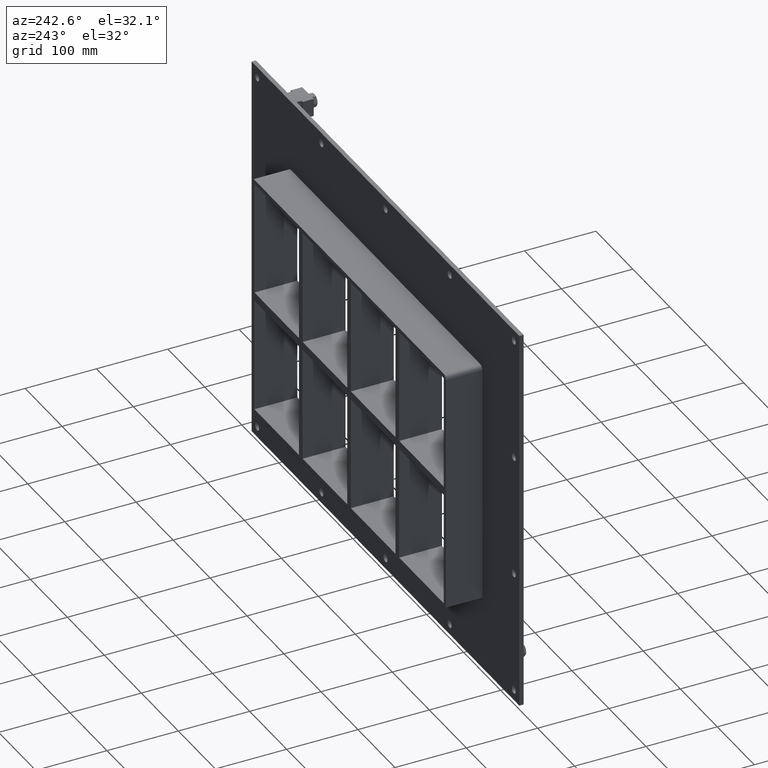
[diagram: clean part render]
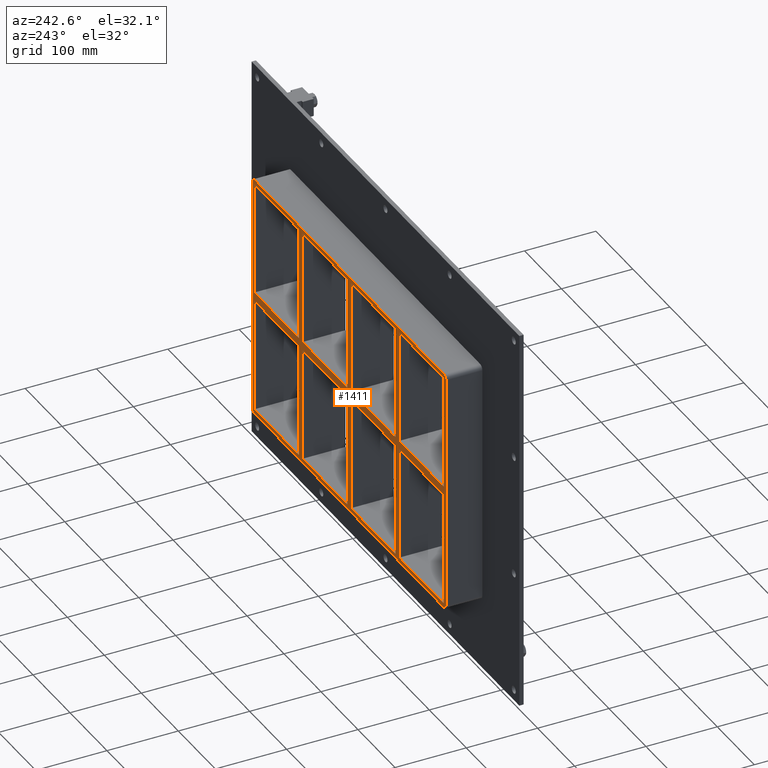
[diagram: same view with one face highlighted and labeled with its STEP entity id]
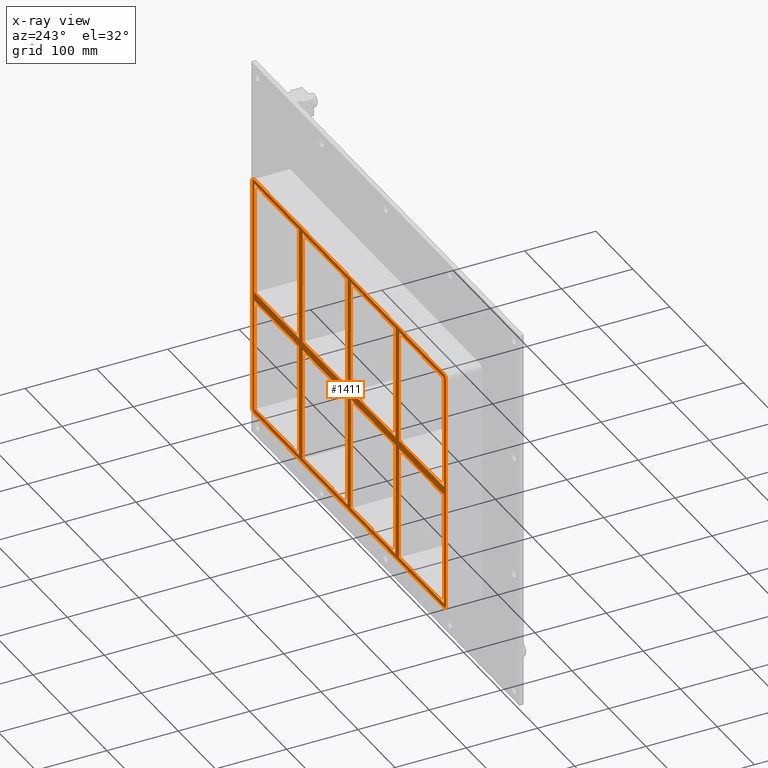
[diagram: x-ray of the same camera — body ghosted, the highlighted face saturated]
A machine part, auxiliary view. The second image highlights one B-rep face of the part: STEP entity #1411.
The next image is the same camera in x-ray: the body ghosted, the highlighted face saturated — about 0% of this face is hidden behind the body in this view.
In plain terms, the highlighted planar face has unit normal (0, 1, 0).
Its self-contained STEP definition (entity closure, byte-faithful):
#467=CARTESIAN_POINT('',(125.50000000000095,57.0,5.999999999999091));
#468=VERTEX_POINT('',#467);
#483=CARTESIAN_POINT('',(125.50000000000095,57.0,165.5));
#484=VERTEX_POINT('',#483);
#491=CARTESIAN_POINT('',(125.50000000000095,57.0,5.999999999999091));
#492=DIRECTION('',(0.0,0.0,1.0));
#493=VECTOR('',#492,159.50000000000091);
#494=LINE('',#491,#493);
#495=EDGE_CURVE('',#468,#484,#494,.T.);
#505=CARTESIAN_POINT('',(125.50000000000097,57.0,-6.000000000010779));
#506=VERTEX_POINT('',#505);
#515=CARTESIAN_POINT('',(125.50000000000097,57.0,-165.5));
#516=VERTEX_POINT('',#515);
#517=CARTESIAN_POINT('',(125.50000000000097,57.0,-165.5));
#518=DIRECTION('',(0.0,0.0,1.0));
#519=VECTOR('',#518,159.49999999998923);
#520=LINE('',#517,#519);
#521=EDGE_CURVE('',#516,#506,#520,.T.);
#545=CARTESIAN_POINT('',(135.50000000000728,57.0,5.999999999999091));
#546=VERTEX_POINT('',#545);
#555=CARTESIAN_POINT('',(135.50000000000728,57.0,165.5));
#556=VERTEX_POINT('',#555);
#557=CARTESIAN_POINT('',(135.50000000000728,57.0,165.5));
#558=DIRECTION('',(0.0,0.0,-1.0));
#559=VECTOR('',#558,159.50000000000091);
#560=LINE('',#557,#559);
#561=EDGE_CURVE('',#556,#546,#560,.T.);
#587=CARTESIAN_POINT('',(135.50000000000728,57.0,-6.000000000010779));
#588=VERTEX_POINT('',#587);
#603=CARTESIAN_POINT('',(135.50000000000728,57.0,-165.49999999998175));
#604=VERTEX_POINT('',#603);
#611=CARTESIAN_POINT('',(135.50000000000728,57.0,-6.0000000000108));
#612=DIRECTION('',(0.0,0.0,-1.0));
#613=VECTOR('',#612,159.49999999997095);
#614=LINE('',#611,#613);
#615=EDGE_CURVE('',#588,#604,#614,.T.);
#627=CARTESIAN_POINT('',(-4.999999999999051,57.0,5.999999999999091));
#628=VERTEX_POINT('',#627);
#643=CARTESIAN_POINT('',(-4.999999999999059,57.0,165.5));
#644=VERTEX_POINT('',#643);
#651=CARTESIAN_POINT('',(-4.99999999999905,57.0,5.999999999999091));
#652=DIRECTION('',(0.0,0.0,1.0));
#653=VECTOR('',#652,159.50000000000091);
#654=LINE('',#651,#653);
#655=EDGE_CURVE('',#628,#644,#654,.T.);
#665=CARTESIAN_POINT('',(-4.999999999999049,57.0,-6.000000000010672));
#666=VERTEX_POINT('',#665);
#675=CARTESIAN_POINT('',(-4.999999999999041,57.0,-165.5));
#676=VERTEX_POINT('',#675);
#677=CARTESIAN_POINT('',(-4.999999999999041,57.0,-165.5));
#678=DIRECTION('',(0.0,0.0,1.0));
#679=VECTOR('',#678,159.49999999998934);
#680=LINE('',#677,#679);
#681=EDGE_CURVE('',#676,#666,#680,.T.);
#705=CARTESIAN_POINT('',(5.000000000007283,57.0,5.999999999999091));
#706=VERTEX_POINT('',#705);
#715=CARTESIAN_POINT('',(5.000000000007283,57.0,165.5));
#716=VERTEX_POINT('',#715);
#717=CARTESIAN_POINT('',(5.000000000007283,57.0,165.5));
#718=DIRECTION('',(0.0,0.0,-1.0));
#719=VECTOR('',#718,159.50000000000091);
#720=LINE('',#717,#719);
#721=EDGE_CURVE('',#716,#706,#720,.T.);
#747=CARTESIAN_POINT('',(5.000000000007283,57.0,-6.000000000010672));
#748=VERTEX_POINT('',#747);
#763=CARTESIAN_POINT('',(5.000000000007283,57.0,-165.49999999998175));
#764=VERTEX_POINT('',#763);
#771=CARTESIAN_POINT('',(5.000000000007283,57.0,-6.000000000010687));
#772=DIRECTION('',(0.0,0.0,-1.0));
#773=VECTOR('',#772,159.49999999997107);
#774=LINE('',#771,#773);
#775=EDGE_CURVE('',#748,#764,#774,.T.);
#786=CARTESIAN_POINT('',(-125.49999999999272,57.0,-165.49999999998175));
#787=VERTEX_POINT('',#786);
#788=CARTESIAN_POINT('',(-125.49999999999272,57.0,-165.5));
#789=DIRECTION('',(1.0,0.0,0.0));
#790=VECTOR('',#789,120.49999999999369);
#791=LINE('',#788,#790);
#792=EDGE_CURVE('',#787,#676,#791,.T.);
#817=CARTESIAN_POINT('',(5.000000000007276,57.0,-165.5));
#818=DIRECTION('',(1.0,0.0,0.0));
#819=VECTOR('',#818,120.49999999999369);
#820=LINE('',#817,#819);
#821=EDGE_CURVE('',#764,#516,#820,.T.);
#847=CARTESIAN_POINT('',(256.0,57.0,-165.5));
#848=VERTEX_POINT('',#847);
#855=CARTESIAN_POINT('',(135.50000000000728,57.0,-165.5));
#856=DIRECTION('',(1.0,0.0,0.0));
#857=VECTOR('',#856,120.49999999999272);
#858=LINE('',#855,#857);
#859=EDGE_CURVE('',#604,#848,#858,.T.);
#1127=CARTESIAN_POINT('',(256.00000000000364,57.0,-6.000000000010886));
#1128=VERTEX_POINT('',#1127);
#1129=CARTESIAN_POINT('',(256.00000000000364,57.0,-6.000000000010886));
#1130=DIRECTION('',(-1.0,0.0,0.0));
#1131=VECTOR('',#1130,120.49999999999636);
#1132=LINE('',#1129,#1131);
#1133=EDGE_CURVE('',#1128,#588,#1132,.T.);
#1152=CARTESIAN_POINT('',(-125.49999999999272,57.0,-6.000000000010568));
#1153=VERTEX_POINT('',#1152);
#1160=CARTESIAN_POINT('',(-4.999999999999034,57.0,-6.000000000010668));
#1161=DIRECTION('',(-1.0,0.0,0.0));
#1162=VECTOR('',#1161,120.49999999999369);
#1163=LINE('',#1160,#1162);
#1164=EDGE_CURVE('',#666,#1153,#1163,.T.);
#1169=CARTESIAN_POINT('',(0.0,57.0,0.0));
#1170=DIRECTION('',(0.0,1.0,0.0));
#1171=DIRECTION('',(0.0,0.0,1.0));
#1172=AXIS2_PLACEMENT_3D('',#1169,#1170,#1171);
#1173=PLANE('',#1172);
#1174=CARTESIAN_POINT('',(-262.0,57.0,-165.5));
#1175=VERTEX_POINT('',#1174);
#1176=CARTESIAN_POINT('',(-256.0,57.0,-171.50000000000003));
#1177=VERTEX_POINT('',#1176);
#1178=CARTESIAN_POINT('',(-256.0,57.0,-165.5));
#1179=DIRECTION('',(0.0,-1.0,0.0));
#1180=DIRECTION('',(-0.707106781186548,0.0,-0.707106781186548));
#1181=AXIS2_PLACEMENT_3D('',#1178,#1179,#1180);
#1182=CIRCLE('',#1181,6.000000000000002);
#1183=EDGE_CURVE('',#1175,#1177,#1182,.T.);
#1184=ORIENTED_EDGE('',*,*,#1183,.F.);
#1185=CARTESIAN_POINT('',(-262.0,57.0,165.5));
#1186=VERTEX_POINT('',#1185);
#1187=CARTESIAN_POINT('',(-262.0,57.0,-165.5));
#1188=DIRECTION('',(0.0,0.0,1.0));
#1189=VECTOR('',#1188,331.0);
#1190=LINE('',#1187,#1189);
#1191=EDGE_CURVE('',#1175,#1186,#1190,.T.);
#1192=ORIENTED_EDGE('',*,*,#1191,.T.);
#1193=CARTESIAN_POINT('',(-256.0,57.0,171.50000000000003));
#1194=VERTEX_POINT('',#1193);
#1195=CARTESIAN_POINT('',(-256.0,57.0,165.5));
#1196=DIRECTION('',(0.0,-1.0,0.0));
#1197=DIRECTION('',(-0.707106781186548,0.0,0.707106781186548));
#1198=AXIS2_PLACEMENT_3D('',#1195,#1196,#1197);
#1199=CIRCLE('',#1198,6.000000000000002);
#1200=EDGE_CURVE('',#1194,#1186,#1199,.T.);
#1201=ORIENTED_EDGE('',*,*,#1200,.F.);
#1202=CARTESIAN_POINT('',(256.0,57.0,171.50000000000003));
#1203=VERTEX_POINT('',#1202);
#1204=CARTESIAN_POINT('',(-256.0,57.0,171.50000000000003));
#1205=DIRECTION('',(1.0,0.0,0.0));
#1206=VECTOR('',#1205,512.0);
#1207=LINE('',#1204,#1206);
#1208=EDGE_CURVE('',#1194,#1203,#1207,.T.);
#1209=ORIENTED_EDGE('',*,*,#1208,.T.);
#1210=CARTESIAN_POINT('',(262.0,57.0,165.5));
#1211=VERTEX_POINT('',#1210);
#1212=CARTESIAN_POINT('',(256.0,57.0,165.5));
#1213=DIRECTION('',(0.0,-1.0,0.0));
#1214=DIRECTION('',(0.707106781186548,0.0,0.707106781186548));
#1215=AXIS2_PLACEMENT_3D('',#1212,#1213,#1214);
#1216=CIRCLE('',#1215,6.000000000000002);
#1217=EDGE_CURVE('',#1211,#1203,#1216,.T.);
#1218=ORIENTED_EDGE('',*,*,#1217,.F.);
#1219=CARTESIAN_POINT('',(262.0,57.0,-165.5));
#1220=VERTEX_POINT('',#1219);
#1221=CARTESIAN_POINT('',(262.0,57.0,165.5));
#1222=DIRECTION('',(0.0,0.0,-1.0));
#1223=VECTOR('',#1222,331.0);
#1224=LINE('',#1221,#1223);
#1225=EDGE_CURVE('',#1211,#1220,#1224,.T.);
#1226=ORIENTED_EDGE('',*,*,#1225,.T.);
#1227=CARTESIAN_POINT('',(256.0,57.0,-171.50000000000003));
#1228=VERTEX_POINT('',#1227);
#1229=CARTESIAN_POINT('',(256.0,57.0,-165.5));
#1230=DIRECTION('',(0.0,-1.0,0.0));
#1231=DIRECTION('',(0.707106781186548,0.0,-0.707106781186548));
#1232=AXIS2_PLACEMENT_3D('',#1229,#1230,#1231);
#1233=CIRCLE('',#1232,6.000000000000002);
#1234=EDGE_CURVE('',#1228,#1220,#1233,.T.);
#1235=ORIENTED_EDGE('',*,*,#1234,.F.);
#1236=CARTESIAN_POINT('',(256.0,57.0,-171.50000000000003));
#1237=DIRECTION('',(-1.0,0.0,0.0));
#1238=VECTOR('',#1237,512.0);
#1239=LINE('',#1236,#1238);
#1240=EDGE_CURVE('',#1228,#1177,#1239,.T.);
#1241=ORIENTED_EDGE('',*,*,#1240,.T.);
#1242=EDGE_LOOP('',(#1184,#1192,#1201,#1209,#1218,#1226,#1235,#1241));
#1243=FACE_OUTER_BOUND('',#1242,.T.);
#1244=ORIENTED_EDGE('',*,*,#859,.T.);
#1245=CARTESIAN_POINT('',(256.0,57.0,-165.50000000000003));
#1246=DIRECTION('',(0.0,0.0,1.0));
#1247=VECTOR('',#1246,159.49999999998914);
#1248=LINE('',#1245,#1247);
#1249=EDGE_CURVE('',#848,#1128,#1248,.T.);
#1250=ORIENTED_EDGE('',*,*,#1249,.T.);
#1251=ORIENTED_EDGE('',*,*,#1133,.T.);
#1252=ORIENTED_EDGE('',*,*,#615,.T.);
#1253=EDGE_LOOP('',(#1244,#1250,#1251,#1252));
#1254=FACE_BOUND('',#1253,.T.);
#1255=CARTESIAN_POINT('',(255.99999999999923,57.0,5.999999999999091));
#1256=VERTEX_POINT('',#1255);
#1257=CARTESIAN_POINT('',(135.50000000000728,57.0,5.999999999999091));
#1258=DIRECTION('',(1.0,0.0,0.0));
#1259=VECTOR('',#1258,120.49999999999193);
#1260=LINE('',#1257,#1259);
#1261=EDGE_CURVE('',#546,#1256,#1260,.T.);
#1262=ORIENTED_EDGE('',*,*,#1261,.T.);
#1263=CARTESIAN_POINT('',(256.0,57.0,165.5));
#1264=VERTEX_POINT('',#1263);
#1265=CARTESIAN_POINT('',(256.0,57.0,5.999999999999091));
#1266=DIRECTION('',(0.0,0.0,1.0));
#1267=VECTOR('',#1266,159.50000000000091);
#1268=LINE('',#1265,#1267);
#1269=EDGE_CURVE('',#1256,#1264,#1268,.T.);
#1270=ORIENTED_EDGE('',*,*,#1269,.T.);
#1271=CARTESIAN_POINT('',(256.00000000000006,57.0,165.5));
#1272=DIRECTION('',(-1.0,0.0,0.0));
#1273=VECTOR('',#1272,120.49999999999278);
#1274=LINE('',#1271,#1273);
#1275=EDGE_CURVE('',#1264,#556,#1274,.T.);
#1276=ORIENTED_EDGE('',*,*,#1275,.T.);
#1277=ORIENTED_EDGE('',*,*,#561,.T.);
#1278=EDGE_LOOP('',(#1262,#1270,#1276,#1277));
#1279=FACE_BOUND('',#1278,.T.);
#1280=ORIENTED_EDGE('',*,*,#521,.T.);
#1281=CARTESIAN_POINT('',(125.50000000000097,57.0,-6.000000000010777));
#1282=DIRECTION('',(-1.0,0.0,0.0));
#1283=VECTOR('',#1282,120.49999999999369);
#1284=LINE('',#1281,#1283);
#1285=EDGE_CURVE('',#506,#748,#1284,.T.);
#1286=ORIENTED_EDGE('',*,*,#1285,.T.);
#1287=ORIENTED_EDGE('',*,*,#775,.T.);
#1288=ORIENTED_EDGE('',*,*,#821,.T.);
#1289=EDGE_LOOP('',(#1280,#1286,#1287,#1288));
#1290=FACE_BOUND('',#1289,.T.);
#1291=ORIENTED_EDGE('',*,*,#495,.T.);
#1292=CARTESIAN_POINT('',(125.50000000000094,57.0,165.5));
#1293=DIRECTION('',(-1.0,0.0,0.0));
#1294=VECTOR('',#1293,120.49999999999366);
#1295=LINE('',#1292,#1294);
#1296=EDGE_CURVE('',#484,#716,#1295,.T.);
#1297=ORIENTED_EDGE('',*,*,#1296,.T.);
#1298=ORIENTED_EDGE('',*,*,#721,.T.);
#1299=CARTESIAN_POINT('',(5.000000000007276,57.0,5.999999999999091));
#1300=DIRECTION('',(1.0,0.0,0.0));
#1301=VECTOR('',#1300,120.49999999999369);
#1302=LINE('',#1299,#1301);
#1303=EDGE_CURVE('',#706,#468,#1302,.T.);
#1304=ORIENTED_EDGE('',*,*,#1303,.T.);
#1305=EDGE_LOOP('',(#1291,#1297,#1298,#1304));
#1306=FACE_BOUND('',#1305,.T.);
#1307=ORIENTED_EDGE('',*,*,#681,.T.);
#1308=ORIENTED_EDGE('',*,*,#1164,.T.);
#1309=CARTESIAN_POINT('',(-125.49999999999272,57.0,-6.000000000010573));
#1310=DIRECTION('',(0.0,0.0,-1.0));
#1311=VECTOR('',#1310,159.49999999997118);
#1312=LINE('',#1309,#1311);
#1313=EDGE_CURVE('',#1153,#787,#1312,.T.);
#1314=ORIENTED_EDGE('',*,*,#1313,.T.);
#1315=ORIENTED_EDGE('',*,*,#792,.T.);
#1316=EDGE_LOOP('',(#1307,#1308,#1314,#1315));
#1317=FACE_BOUND('',#1316,.T.);
#1318=CARTESIAN_POINT('',(-255.99999999999739,57.0,5.999999999999091));
#1319=VERTEX_POINT('',#1318);
#1320=CARTESIAN_POINT('',(-135.49999999999906,57.0,5.999999999999091));
#1321=VERTEX_POINT('',#1320);
#1322=CARTESIAN_POINT('',(-255.99999999999739,57.0,5.999999999999091));
#1323=DIRECTION('',(1.0,0.0,0.0));
#1324=VECTOR('',#1323,120.49999999999832);
#1325=LINE('',#1322,#1324);
#1326=EDGE_CURVE('',#1319,#1321,#1325,.T.);
#1327=ORIENTED_EDGE('',*,*,#1326,.T.);
#1328=CARTESIAN_POINT('',(-135.49999999999906,57.0,165.5));
#1329=VERTEX_POINT('',#1328);
#1330=CARTESIAN_POINT('',(-135.49999999999903,57.0,5.999999999999091));
#1331=DIRECTION('',(0.0,0.0,1.0));
#1332=VECTOR('',#1331,159.50000000000091);
#1333=LINE('',#1330,#1332);
#1334=EDGE_CURVE('',#1321,#1329,#1333,.T.);
#1335=ORIENTED_EDGE('',*,*,#1334,.T.);
#1336=CARTESIAN_POINT('',(-256.0,57.0,165.5));
#1337=VERTEX_POINT('',#1336);
#1338=CARTESIAN_POINT('',(-135.49999999999906,57.0,165.5));
#1339=DIRECTION('',(-1.0,0.0,0.0));
#1340=VECTOR('',#1339,120.50000000000094);
#1341=LINE('',#1338,#1340);
#1342=EDGE_CURVE('',#1329,#1337,#1341,.T.);
#1343=ORIENTED_EDGE('',*,*,#1342,.T.);
#1344=CARTESIAN_POINT('',(-256.0,57.0,165.50000000000003));
#1345=DIRECTION('',(0.0,0.0,-1.0));
#1346=VECTOR('',#1345,159.50000000000094);
#1347=LINE('',#1344,#1346);
#1348=EDGE_CURVE('',#1337,#1319,#1347,.T.);
#1349=ORIENTED_EDGE('',*,*,#1348,.T.);
#1350=EDGE_LOOP('',(#1327,#1335,#1343,#1349));
#1351=FACE_BOUND('',#1350,.T.);
#1352=CARTESIAN_POINT('',(-255.99999999999739,57.0,-6.000000000010459));
#1353=VERTEX_POINT('',#1352);
#1354=CARTESIAN_POINT('',(-256.0,57.0,-165.5));
#1355=VERTEX_POINT('',#1354);
#1356=CARTESIAN_POINT('',(-256.0,57.0,-6.000000000010459));
#1357=DIRECTION('',(0.0,0.0,-1.0));
#1358=VECTOR('',#1357,159.49999999998954);
#1359=LINE('',#1356,#1358);
#1360=EDGE_CURVE('',#1353,#1355,#1359,.T.);
#1361=ORIENTED_EDGE('',*,*,#1360,.T.);
#1362=CARTESIAN_POINT('',(-135.49999999999903,57.0,-165.5));
#1363=VERTEX_POINT('',#1362);
#1364=CARTESIAN_POINT('',(-256.00000000000006,57.0,-165.5));
#1365=DIRECTION('',(1.0,0.0,0.0));
#1366=VECTOR('',#1365,120.50000000000102);
#1367=LINE('',#1364,#1366);
#1368=EDGE_CURVE('',#1355,#1363,#1367,.T.);
#1369=ORIENTED_EDGE('',*,*,#1368,.T.);
#1370=CARTESIAN_POINT('',(-135.49999999999903,57.0,-6.000000000010559));
#1371=VERTEX_POINT('',#1370);
#1372=CARTESIAN_POINT('',(-135.49999999999903,57.0,-165.5));
#1373=DIRECTION('',(0.0,0.0,1.0));
#1374=VECTOR('',#1373,159.49999999998943);
#1375=LINE('',#1372,#1374);
#1376=EDGE_CURVE('',#1363,#1371,#1375,.T.);
#1377=ORIENTED_EDGE('',*,*,#1376,.T.);
#1378=CARTESIAN_POINT('',(-135.49999999999903,57.0,-6.00000000001056));
#1379=DIRECTION('',(-1.0,0.0,0.0));
#1380=VECTOR('',#1379,120.49999999999835);
#1381=LINE('',#1378,#1380);
#1382=EDGE_CURVE('',#1371,#1353,#1381,.T.);
#1383=ORIENTED_EDGE('',*,*,#1382,.T.);
#1384=EDGE_LOOP('',(#1361,#1369,#1377,#1383));
#1385=FACE_BOUND('',#1384,.T.);
#1386=ORIENTED_EDGE('',*,*,#655,.T.);
#1387=CARTESIAN_POINT('',(-125.49999999999272,57.0,165.5));
#1388=VERTEX_POINT('',#1387);
#1389=CARTESIAN_POINT('',(-4.999999999999048,57.0,165.5));
#1390=DIRECTION('',(-1.0,0.0,0.0));
#1391=VECTOR('',#1390,120.49999999999368);
#1392=LINE('',#1389,#1391);
#1393=EDGE_CURVE('',#644,#1388,#1392,.T.);
#1394=ORIENTED_EDGE('',*,*,#1393,.T.);
#1395=CARTESIAN_POINT('',(-125.49999999999272,57.0,5.999999999999091));
#1396=VERTEX_POINT('',#1395);
#1397=CARTESIAN_POINT('',(-125.49999999999272,57.0,165.5));
#1398=DIRECTION('',(0.0,0.0,-1.0));
#1399=VECTOR('',#1398,159.50000000000091);
#1400=LINE('',#1397,#1399);
#1401=EDGE_CURVE('',#1388,#1396,#1400,.T.);
#1402=ORIENTED_EDGE('',*,*,#1401,.T.);
#1403=CARTESIAN_POINT('',(-125.49999999999272,57.0,5.999999999999091));
#1404=DIRECTION('',(1.0,0.0,0.0));
#1405=VECTOR('',#1404,120.49999999999369);
#1406=LINE('',#1403,#1405);
#1407=EDGE_CURVE('',#1396,#628,#1406,.T.);
#1408=ORIENTED_EDGE('',*,*,#1407,.T.);
#1409=EDGE_LOOP('',(#1386,#1394,#1402,#1408));
#1410=FACE_BOUND('',#1409,.T.);
#1411=ADVANCED_FACE('',(#1243,#1254,#1279,#1290,#1306,#1317,#1351,#1385,#1410),#1173,.T.);